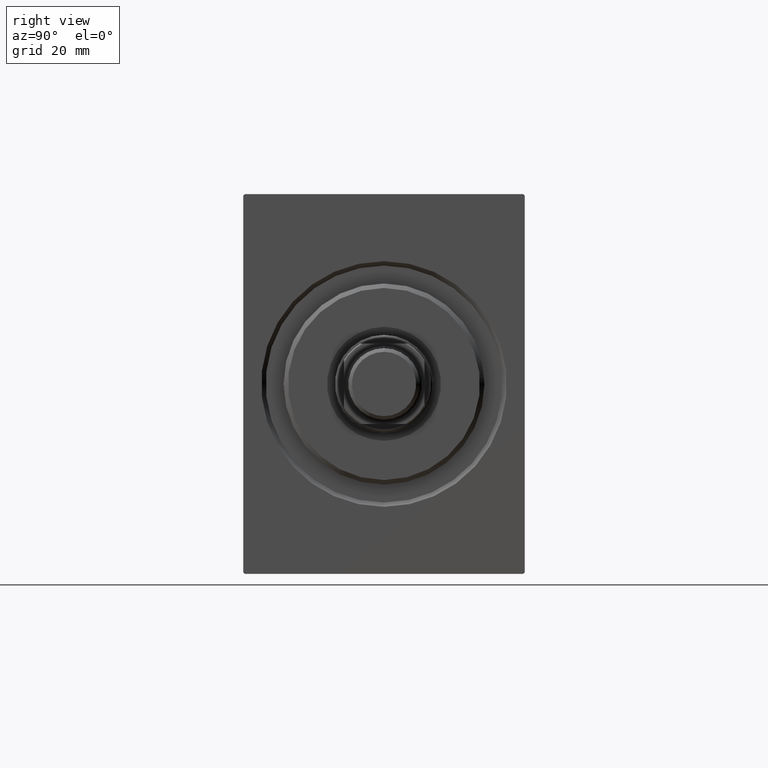
[diagram: clean part render]
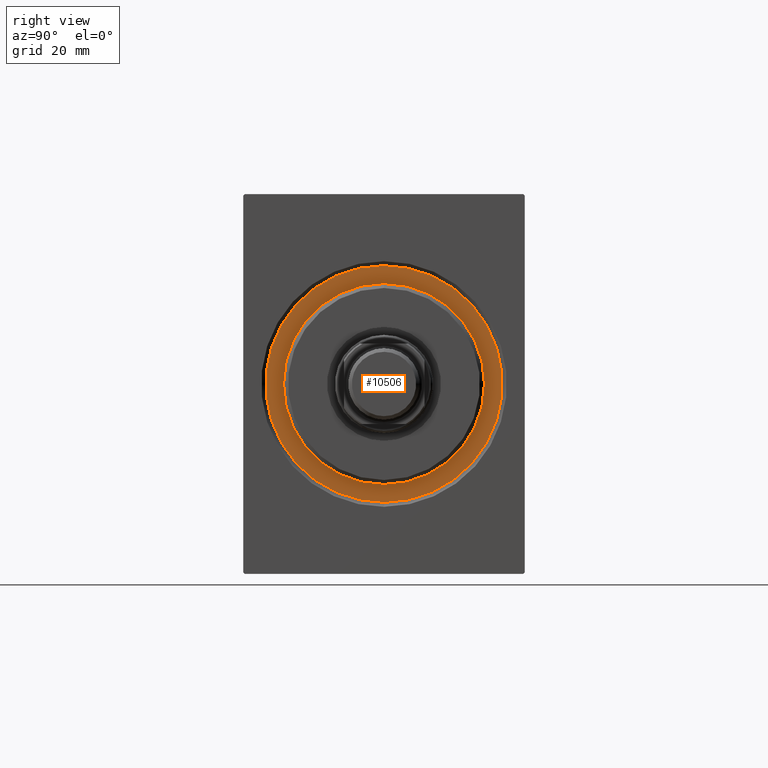
[diagram: same view with one face highlighted and labeled with its STEP entity id]
A machine part, right view. The second image highlights one B-rep face of the part: STEP entity #10506.
In plain terms, the highlighted planar face has unit normal (1, 0, 0).
Its self-contained STEP definition (entity closure, byte-faithful):
#973 = AXIS2_PLACEMENT_3D ( 'NONE', #17354, #23482, #3316 ) ;
#2260 = EDGE_CURVE ( 'NONE', #27420, #34742, #19092, .T. ) ;
#2585 = CARTESIAN_POINT ( 'NONE',  ( 0.000000000000000000, 0.000000000000000000, 0.000000000000000000 ) ) ;
#3316 = DIRECTION ( 'NONE',  ( 0.000000000000000000, 0.000000000000000000, -1.000000000000000000 ) ) ;
#6162 = VERTEX_POINT ( 'NONE', #28319 ) ;
#6988 = FACE_BOUND ( 'NONE', #16096, .T. ) ;
#7208 = CARTESIAN_POINT ( 'NONE',  ( 0.000000000000000000, 0.000000000000000000, 0.000000000000000000 ) ) ;
#9113 = ORIENTED_EDGE ( 'NONE', *, *, #23814, .T. ) ;
#9239 = VERTEX_POINT ( 'NONE', #18486 ) ;
#10500 = FACE_OUTER_BOUND ( 'NONE', #25784, .T. ) ;
#10506 = ADVANCED_FACE ( 'NONE', ( #6988, #10500 ), #37251, .T. ) ;
#11398 = AXIS2_PLACEMENT_3D ( 'NONE', #32571, #24740, #35422 ) ;
#11483 = AXIS2_PLACEMENT_3D ( 'NONE', #2585, #42946, #15746 ) ;
#13245 = ORIENTED_EDGE ( 'NONE', *, *, #2260, .F. ) ;
#13732 = AXIS2_PLACEMENT_3D ( 'NONE', #7208, #39695, #16441 ) ;
#15746 = DIRECTION ( 'NONE',  ( 0.000000000000000000, 0.000000000000000000, -1.000000000000000000 ) ) ;
#16096 = EDGE_LOOP ( 'NONE', ( #13245, #16781 ) ) ;
#16441 = DIRECTION ( 'NONE',  ( 0.000000000000000000, 0.000000000000000000, -1.000000000000000000 ) ) ;
#16781 = ORIENTED_EDGE ( 'NONE', *, *, #25816, .F. ) ;
#17354 = CARTESIAN_POINT ( 'NONE',  ( 0.000000000000000000, 0.000000000000000000, 0.000000000000000000 ) ) ;
#18486 = CARTESIAN_POINT ( 'NONE',  ( 0.000000000000000000, 0.000000000000000000, -26.50000000000000355 ) ) ;
#18972 = CARTESIAN_POINT ( 'NONE',  ( 0.000000000000000000, 2.755455298081545172E-15, -22.50000000000000355 ) ) ;
#19092 = CIRCLE ( 'NONE', #11398, 22.50000000000000355 ) ;
#20559 = AXIS2_PLACEMENT_3D ( 'NONE', #32827, #36981, #33255 ) ;
#23482 = DIRECTION ( 'NONE',  ( 1.000000000000000000, 0.000000000000000000, 0.000000000000000000 ) ) ;
#23814 = EDGE_CURVE ( 'NONE', #6162, #9239, #28953, .T. ) ;
#24740 = DIRECTION ( 'NONE',  ( 1.000000000000000000, -0.000000000000000000, 0.000000000000000000 ) ) ;
#25784 = EDGE_LOOP ( 'NONE', ( #28676, #9113 ) ) ;
#25816 = EDGE_CURVE ( 'NONE', #34742, #27420, #30386, .T. ) ;
#26111 = EDGE_CURVE ( 'NONE', #9239, #6162, #38793, .T. ) ;
#27420 = VERTEX_POINT ( 'NONE', #28995 ) ;
#28319 = CARTESIAN_POINT ( 'NONE',  ( 0.000000000000000000, 3.245314017740486554E-15, 26.50000000000000355 ) ) ;
#28676 = ORIENTED_EDGE ( 'NONE', *, *, #26111, .T. ) ;
#28953 = CIRCLE ( 'NONE', #20559, 26.50000000000000355 ) ;
#28995 = CARTESIAN_POINT ( 'NONE',  ( 0.000000000000000000, 0.000000000000000000, 22.50000000000000355 ) ) ;
#30386 = CIRCLE ( 'NONE', #11483, 22.50000000000000355 ) ;
#32571 = CARTESIAN_POINT ( 'NONE',  ( 0.000000000000000000, 0.000000000000000000, 0.000000000000000000 ) ) ;
#32827 = CARTESIAN_POINT ( 'NONE',  ( 0.000000000000000000, 0.000000000000000000, 0.000000000000000000 ) ) ;
#33255 = DIRECTION ( 'NONE',  ( 0.000000000000000000, 0.000000000000000000, -1.000000000000000000 ) ) ;
#34742 = VERTEX_POINT ( 'NONE', #18972 ) ;
#35422 = DIRECTION ( 'NONE',  ( 0.000000000000000000, 0.000000000000000000, -1.000000000000000000 ) ) ;
#36981 = DIRECTION ( 'NONE',  ( 1.000000000000000000, 0.000000000000000000, 0.000000000000000000 ) ) ;
#37251 = PLANE ( 'NONE',  #13732 ) ;
#38793 = CIRCLE ( 'NONE', #973, 26.50000000000000355 ) ;
#39695 = DIRECTION ( 'NONE',  ( 1.000000000000000000, 0.000000000000000000, 0.000000000000000000 ) ) ;
#42946 = DIRECTION ( 'NONE',  ( 1.000000000000000000, -0.000000000000000000, 0.000000000000000000 ) ) ;